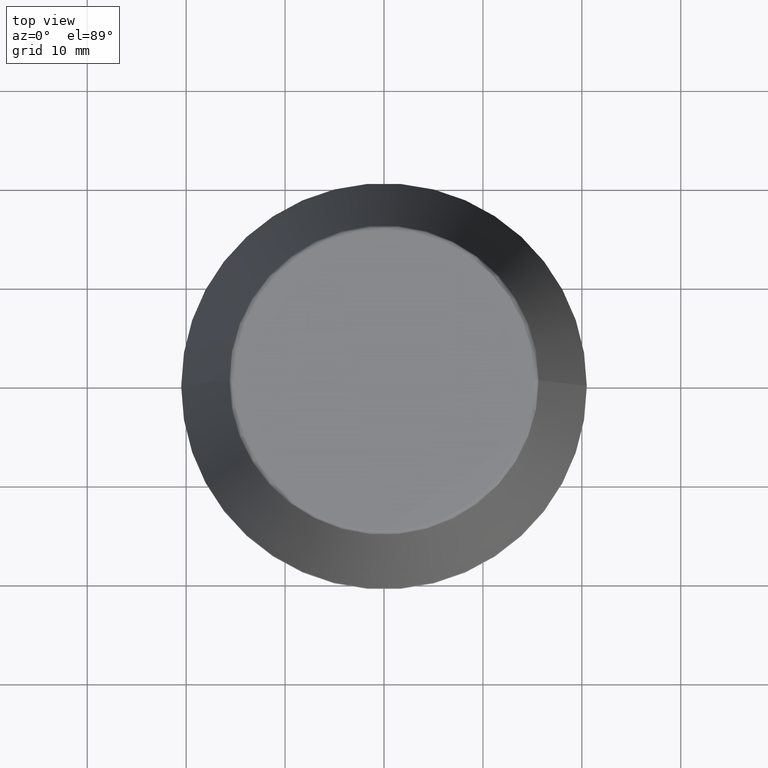
[diagram: clean part render]
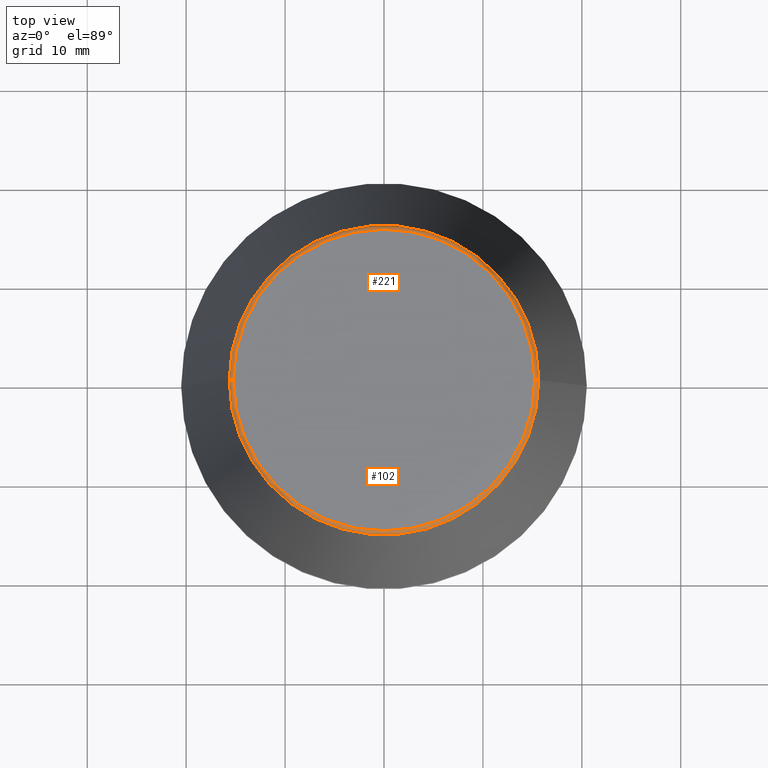
[diagram: same view with one multi-face feature highlighted, each face labeled with its STEP entity id]
A machine part, top view. The highlighted faces form ONE feature: a constant-radius fillet chain: 2 tangent blend faces with common blend radius 0.4 mm. The faces share edges in the B-rep.
Their STEP definitions:
[1] entity #102 (Torus):
#6 = ORIENTED_EDGE ( 'NONE', *, *, #225, .F. ) ;
#9 = AXIS2_PLACEMENT_3D ( 'NONE', #222, #283, #252 ) ;
#18 = VERTEX_POINT ( 'NONE', #40 ) ;
#19 = AXIS2_PLACEMENT_3D ( 'NONE', #52, #351, #23 ) ;
#23 = DIRECTION ( 'NONE',  ( 0.0000000000000000000, 0.0000000000000000000, -1.000000000000000000 ) ) ;
#24 = CARTESIAN_POINT ( 'NONE',  ( -15.24773554530077600, 1.891563625393435400E-015, 46.00000000000000000 ) ) ;
#31 = CIRCLE ( 'NONE', #19, 0.3999999999999975800 ) ;
#40 = CARTESIAN_POINT ( 'NONE',  ( 15.64384277279740400, 2.213191991290356800E-015, 45.65566924038402900 ) ) ;
#43 = AXIS2_PLACEMENT_3D ( 'NONE', #231, #54, #60 ) ;
#52 = CARTESIAN_POINT ( 'NONE',  ( 15.24773554530077600, 0.0000000000000000000, 45.60000000000000100 ) ) ;
#54 = DIRECTION ( 'NONE',  ( -0.0000000000000000000, -0.0000000000000000000, 1.000000000000000000 ) ) ;
#57 = EDGE_LOOP ( 'NONE', ( #154, #136, #241, #6 ) ) ;
#60 = DIRECTION ( 'NONE',  ( 1.000000000000000000, 0.0000000000000000000, 0.0000000000000000000 ) ) ;
#70 = CARTESIAN_POINT ( 'NONE',  ( 0.0000000000000000000, 0.0000000000000000000, 45.60000000000000100 ) ) ;
#92 = CARTESIAN_POINT ( 'NONE',  ( -15.64384277279740400, 0.0000000000000000000, 45.65566924038402900 ) ) ;
#102 = ADVANCED_FACE ( 'NONE', ( #177 ), #327, .T. ) ;
#112 = VERTEX_POINT ( 'NONE', #216 ) ;
#116 = DIRECTION ( 'NONE',  ( -0.0000000000000000000, -0.0000000000000000000, 1.000000000000000000 ) ) ;
#136 = ORIENTED_EDGE ( 'NONE', *, *, #210, .T. ) ;
#154 = ORIENTED_EDGE ( 'NONE', *, *, #178, .F. ) ;
#157 = AXIS2_PLACEMENT_3D ( 'NONE', #70, #342, #245 ) ;
#170 = CARTESIAN_POINT ( 'NONE',  ( 0.0000000000000000000, 0.0000000000000000000, 45.65566924038402900 ) ) ;
#177 = FACE_OUTER_BOUND ( 'NONE', #57, .T. ) ;
#178 = EDGE_CURVE ( 'NONE', #224, #253, #364, .T. ) ;
#196 = CIRCLE ( 'NONE', #43, 15.24773554530077600 ) ;
#202 = CIRCLE ( 'NONE', #309, 15.64384277279740400 ) ;
#210 = EDGE_CURVE ( 'NONE', #224, #18, #202, .T. ) ;
#216 = CARTESIAN_POINT ( 'NONE',  ( 15.24773554530077600, 0.0000000000000000000, 46.00000000000000000 ) ) ;
#222 = CARTESIAN_POINT ( 'NONE',  ( -15.24773554530077600, 1.867309052979791600E-015, 45.60000000000000100 ) ) ;
#224 = VERTEX_POINT ( 'NONE', #92 ) ;
#225 = EDGE_CURVE ( 'NONE', #253, #112, #196, .T. ) ;
#231 = CARTESIAN_POINT ( 'NONE',  ( 0.0000000000000000000, 0.0000000000000000000, 46.00000000000000000 ) ) ;
#241 = ORIENTED_EDGE ( 'NONE', *, *, #344, .T. ) ;
#245 = DIRECTION ( 'NONE',  ( 1.000000000000000000, 0.0000000000000000000, 0.0000000000000000000 ) ) ;
#252 = DIRECTION ( 'NONE',  ( -1.000000000000000000, 1.224646799147353900E-016, 0.0000000000000000000 ) ) ;
#253 = VERTEX_POINT ( 'NONE', #24 ) ;
#283 = DIRECTION ( 'NONE',  ( 1.224646799147353200E-016, 1.000000000000000000, 0.0000000000000000000 ) ) ;
#309 = AXIS2_PLACEMENT_3D ( 'NONE', #170, #116, #353 ) ;
#327 = TOROIDAL_SURFACE ( 'NONE', #157, 15.24773554530077600, 0.3999999999999991900 ) ;
#342 = DIRECTION ( 'NONE',  ( -0.0000000000000000000, -0.0000000000000000000, 1.000000000000000000 ) ) ;
#344 = EDGE_CURVE ( 'NONE', #18, #112, #31, .T. ) ;
#351 = DIRECTION ( 'NONE',  ( 0.0000000000000000000, -1.000000000000000000, 0.0000000000000000000 ) ) ;
#353 = DIRECTION ( 'NONE',  ( 1.000000000000000000, 0.0000000000000000000, 0.0000000000000000000 ) ) ;
#364 = CIRCLE ( 'NONE', #9, 0.3999999999999975800 ) ;
[2] entity #221 (Torus):
#8 = EDGE_CURVE ( 'NONE', #112, #253, #162, .T. ) ;
#9 = AXIS2_PLACEMENT_3D ( 'NONE', #222, #283, #252 ) ;
#18 = VERTEX_POINT ( 'NONE', #40 ) ;
#19 = AXIS2_PLACEMENT_3D ( 'NONE', #52, #351, #23 ) ;
#23 = DIRECTION ( 'NONE',  ( 0.0000000000000000000, 0.0000000000000000000, -1.000000000000000000 ) ) ;
#24 = CARTESIAN_POINT ( 'NONE',  ( -15.24773554530077600, 1.891563625393435400E-015, 46.00000000000000000 ) ) ;
#31 = CIRCLE ( 'NONE', #19, 0.3999999999999975800 ) ;
#40 = CARTESIAN_POINT ( 'NONE',  ( 15.64384277279740400, 2.213191991290356800E-015, 45.65566924038402900 ) ) ;
#45 = DIRECTION ( 'NONE',  ( 1.000000000000000000, 0.0000000000000000000, 0.0000000000000000000 ) ) ;
#52 = CARTESIAN_POINT ( 'NONE',  ( 15.24773554530077600, 0.0000000000000000000, 45.60000000000000100 ) ) ;
#67 = CIRCLE ( 'NONE', #104, 15.64384277279740400 ) ;
#73 = CARTESIAN_POINT ( 'NONE',  ( 0.0000000000000000000, 0.0000000000000000000, 45.60000000000000100 ) ) ;
#82 = DIRECTION ( 'NONE',  ( 1.000000000000000000, 0.0000000000000000000, 0.0000000000000000000 ) ) ;
#92 = CARTESIAN_POINT ( 'NONE',  ( -15.64384277279740400, 0.0000000000000000000, 45.65566924038402900 ) ) ;
#104 = AXIS2_PLACEMENT_3D ( 'NONE', #249, #220, #82 ) ;
#105 = ORIENTED_EDGE ( 'NONE', *, *, #8, .F. ) ;
#112 = VERTEX_POINT ( 'NONE', #216 ) ;
#124 = DIRECTION ( 'NONE',  ( -0.0000000000000000000, -0.0000000000000000000, 1.000000000000000000 ) ) ;
#125 = DIRECTION ( 'NONE',  ( -0.0000000000000000000, -0.0000000000000000000, 1.000000000000000000 ) ) ;
#129 = ORIENTED_EDGE ( 'NONE', *, *, #137, .T. ) ;
#137 = EDGE_CURVE ( 'NONE', #18, #224, #67, .T. ) ;
#143 = EDGE_LOOP ( 'NONE', ( #129, #163, #105, #148 ) ) ;
#148 = ORIENTED_EDGE ( 'NONE', *, *, #344, .F. ) ;
#162 = CIRCLE ( 'NONE', #207, 15.24773554530077600 ) ;
#163 = ORIENTED_EDGE ( 'NONE', *, *, #178, .T. ) ;
#178 = EDGE_CURVE ( 'NONE', #224, #253, #364, .T. ) ;
#207 = AXIS2_PLACEMENT_3D ( 'NONE', #267, #125, #45 ) ;
#216 = CARTESIAN_POINT ( 'NONE',  ( 15.24773554530077600, 0.0000000000000000000, 46.00000000000000000 ) ) ;
#220 = DIRECTION ( 'NONE',  ( -0.0000000000000000000, -0.0000000000000000000, 1.000000000000000000 ) ) ;
#221 = ADVANCED_FACE ( 'NONE', ( #340 ), #284, .T. ) ;
#222 = CARTESIAN_POINT ( 'NONE',  ( -15.24773554530077600, 1.867309052979791600E-015, 45.60000000000000100 ) ) ;
#224 = VERTEX_POINT ( 'NONE', #92 ) ;
#249 = CARTESIAN_POINT ( 'NONE',  ( 0.0000000000000000000, 0.0000000000000000000, 45.65566924038402900 ) ) ;
#252 = DIRECTION ( 'NONE',  ( -1.000000000000000000, 1.224646799147353900E-016, 0.0000000000000000000 ) ) ;
#253 = VERTEX_POINT ( 'NONE', #24 ) ;
#267 = CARTESIAN_POINT ( 'NONE',  ( 0.0000000000000000000, 0.0000000000000000000, 46.00000000000000000 ) ) ;
#283 = DIRECTION ( 'NONE',  ( 1.224646799147353200E-016, 1.000000000000000000, 0.0000000000000000000 ) ) ;
#284 = TOROIDAL_SURFACE ( 'NONE', #360, 15.24773554530077600, 0.3999999999999991900 ) ;
#340 = FACE_OUTER_BOUND ( 'NONE', #143, .T. ) ;
#344 = EDGE_CURVE ( 'NONE', #18, #112, #31, .T. ) ;
#351 = DIRECTION ( 'NONE',  ( 0.0000000000000000000, -1.000000000000000000, 0.0000000000000000000 ) ) ;
#355 = DIRECTION ( 'NONE',  ( 1.000000000000000000, 0.0000000000000000000, 0.0000000000000000000 ) ) ;
#360 = AXIS2_PLACEMENT_3D ( 'NONE', #73, #124, #355 ) ;
#364 = CIRCLE ( 'NONE', #9, 0.3999999999999975800 ) ;